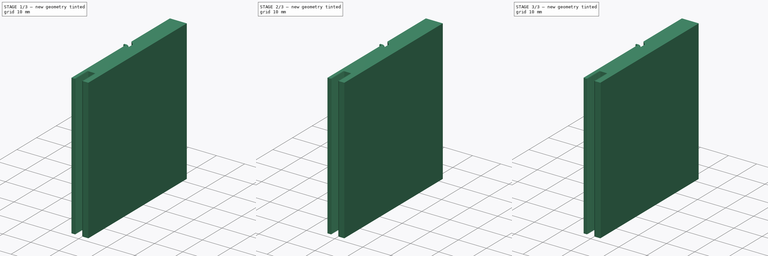
[diagram: build sequence overview — one tinted view per stage of 3, left to right]
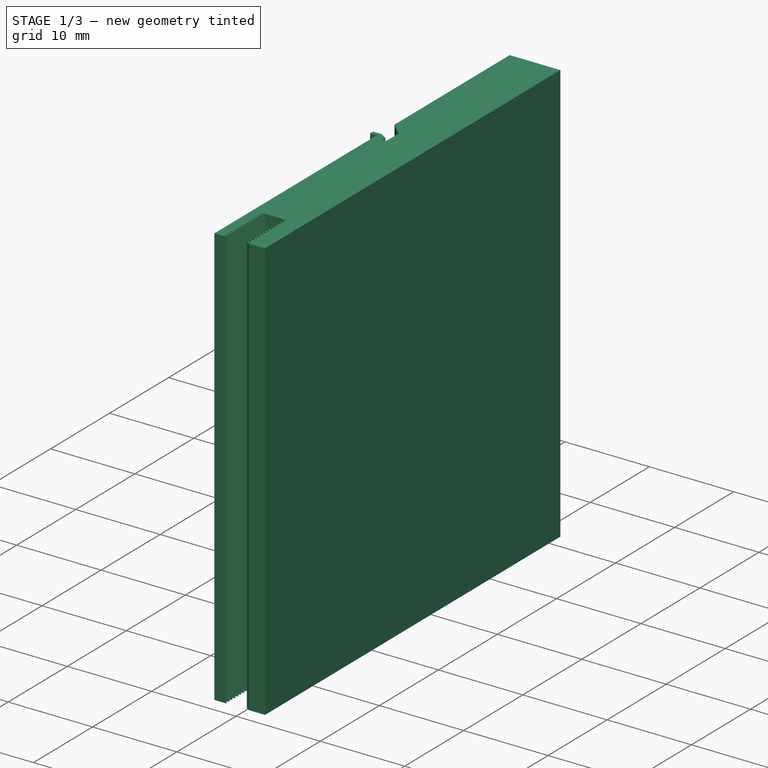
[diagram: stage 1 of 3 — iso view after this stage's code; geometry added in this stage tinted green]
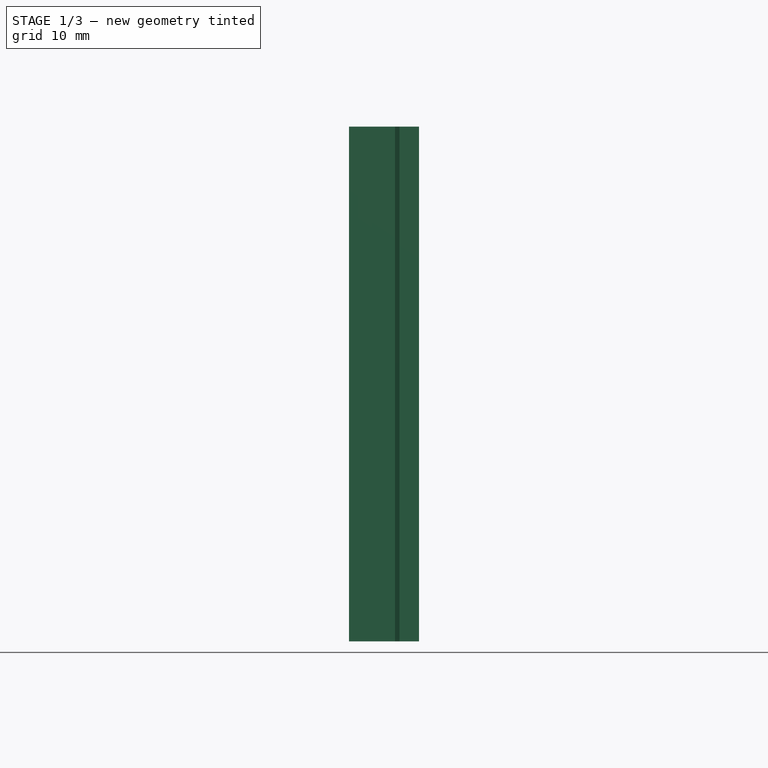
[diagram: stage 1 of 3 — front view after this stage's code; geometry added in this stage tinted green]
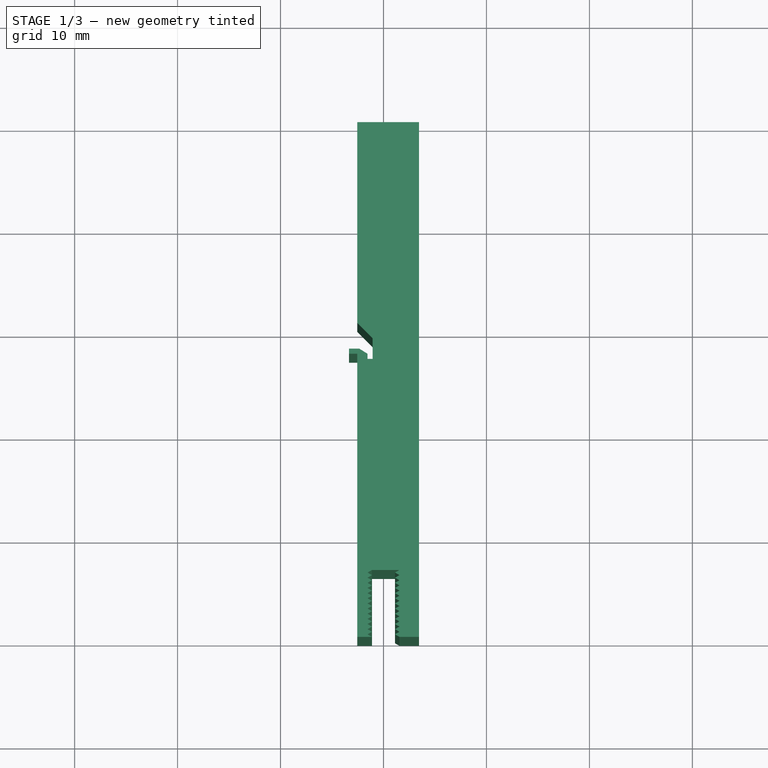
[diagram: stage 1 of 3 — top view after this stage's code; geometry added in this stage tinted green]
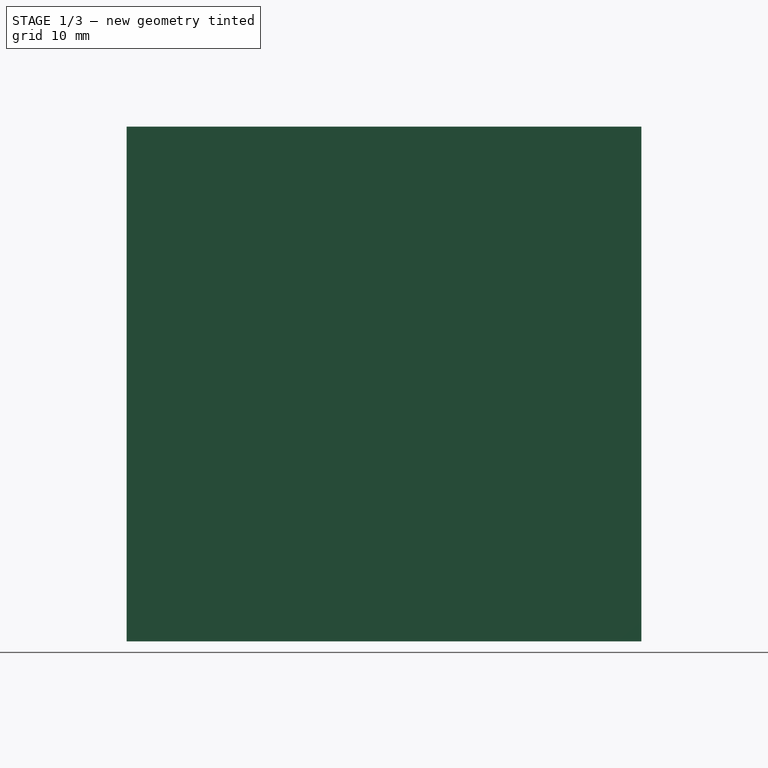
[diagram: stage 1 of 3 — right view after this stage's code; geometry added in this stage tinted green]
FCSTD DOCUMENT  (FreeCAD 0.17R13541 (Git))
Label: hsink-alutronics-PR101-50
License: All rights reserved
LicenseURL: http://fr.wikipedia.org/wiki/<copyright redacted>
objects: PartDesign::Fillet×4, Part::Feature×2, Sketcher::SketchObject×2, PartDesign::Pad×1, PartDesign::Pocket×1, PartDesign::Body×1, App::Part×1
note: 13 computed .brp shape members not serialized (recipe doc carries the construction recipe); baked Part::Feature solids carry a one-line shape summary decoded from their .brp

FEATURE [Part::Feature] Part__Feature  label="PR 101-50"
  shape: bbox 6.75 x 50 x 50 mm, 128 faces (baked)
FEATURE [Sketcher::SketchObject] Sketch001
  MapMode = 5
  sketch-geometry (13):
    g0: LineSegment StartX=-2.55 StartY=0 StartZ=0 EndX=3.45 EndY=0 EndZ=0
    g1: LineSegment StartX=3.45 StartY=0 StartZ=0 EndX=3.45 EndY=50 EndZ=0
    g2: LineSegment StartX=-2.55 StartY=0 StartZ=0 EndX=-2.55 EndY=27.5 EndZ=0
    g3: LineSegment StartX=-2.55 StartY=27.5 StartZ=0 EndX=-3.35 EndY=27.5 EndZ=0
    g4: LineSegment StartX=-3.35 StartY=27.5 StartZ=0 EndX=-3.35 EndY=28 EndZ=0
    g5: LineSegment StartX=-3.35 StartY=28 StartZ=0 EndX=-2.35 EndY=28 EndZ=0
    g6: LineSegment StartX=-2.35 StartY=28 StartZ=0 EndX=-1.55 EndY=27.5 EndZ=0
    g7: LineSegment StartX=-1.55 StartY=27.5 StartZ=0 EndX=-1.55 EndY=27 EndZ=0
    g8: LineSegment StartX=-1.55 StartY=27 StartZ=0 EndX=-1.05 EndY=27 EndZ=0
    g9: LineSegment StartX=-1.05 StartY=27 StartZ=0 EndX=-1.05 EndY=29 EndZ=0
    g10: LineSegment StartX=-1.05 StartY=29 StartZ=0 EndX=-2.55 EndY=30.5 EndZ=0
    g11: LineSegment StartX=-2.55 StartY=30.5 StartZ=0 EndX=-2.55 EndY=50 EndZ=0
    g12: LineSegment StartX=-2.55 StartY=50 StartZ=0 EndX=3.45 EndY=50 EndZ=0
  constraints (39):
    c: PointOnObject(g0,g-1)
    c: PointOnObject(g0,g-1)
    c: Coincident(g0,g1)
    c: Vertical(g1)
    c: DistanceX(g0) = 6
    c: DistanceX(g-1,g0) = 3.45
    c: DistanceY(g0,g1) = 50
    c: Coincident(g0,g2)
    c: Vertical(g2)
    c: Coincident(g2,g3)
    c: Horizontal(g3)
    c: Coincident(g3,g4)
    c: Vertical(g4)
    c: Coincident(g4,g5)
    c: Horizontal(g5)
    c: Coincident(g5,g6)
    c: Coincident(g6,g7)
    c: Coincident(g7,g8)
    c: Horizontal(g8)
    c: Coincident(g8,g9)
    c: Vertical(g9)
    c: Coincident(g9,g10)
    c: Coincident(g10,g11)
    c: Vertical(g11)
    c: Coincident(g11,g12)
    c: Coincident(g12,g1)
    c: Horizontal(g12)
    c: DistanceX(g12) = 6
    c: DistanceY(g2) = 27.5
    c: DistanceX(g3) = -0.8
    c: DistanceY(g4) = 0.5
    c: DistanceX(g8) = 0.5
    c: Vertical(g7)
    c: DistanceX(g2,g6) = 1
    c: DistanceY(g9) = 2
    c: DistanceY(g10,g5) = -2.5
    c: DistanceY(g7) = -0.5
    c: DistanceY(g5,g6) = -0.5
    c: DistanceX(g5) = 1
FEATURE [PartDesign::Pad] Pad
  Length = 50
  Length2 = 100
  Profile = -> Sketch001
  Type = 0
FEATURE [Part::Feature] ScrewTap001  label="M3x6.0-ScrewTap001"
  Placement = pos=(0,0,0) rot=(1,0,0;1.5708rad)
  shape: bbox 4.303 x 7.5 x 4.617 mm, 58 faces (baked)
FEATURE [Sketcher::SketchObject] Sketch
  MapMode = 5
  Support = -> [XY_Plane002]
  sketch-geometry (54):
    g0: LineSegment StartX=-1.11699 StartY=0 StartZ=0 EndX=1.55 EndY=0 EndZ=0
    g1: LineSegment StartX=1.55 StartY=0 StartZ=0 EndX=1.11699 EndY=0.25 EndZ=0
    g2: LineSegment StartX=1.11699 StartY=0.25 StartZ=0 EndX=1.55 EndY=0.5 EndZ=0
    g3: LineSegment StartX=1.55 StartY=0.5 StartZ=0 EndX=1.11699 EndY=0.75 EndZ=0
    g4: LineSegment StartX=1.11699 StartY=0.75 StartZ=0 EndX=1.55 EndY=1 EndZ=0
    g5: LineSegment StartX=1.55 StartY=1 StartZ=0 EndX=1.11699 EndY=1.25 EndZ=0
    g6: LineSegment StartX=1.11699 StartY=1.25 StartZ=0 EndX=1.55 EndY=1.5 EndZ=0
    g7: LineSegment StartX=1.55 StartY=1.5 StartZ=0 EndX=1.11699 EndY=1.75 EndZ=0
    g8: LineSegment StartX=1.11699 StartY=1.75 StartZ=0 EndX=1.55 EndY=2 EndZ=0
    g9: LineSegment StartX=1.55 StartY=2 StartZ=0 EndX=1.11699 EndY=2.25 EndZ=0
    g10: LineSegment StartX=1.11699 StartY=2.25 StartZ=0 EndX=1.55 EndY=2.5 EndZ=0
    g11: LineSegment StartX=1.55 StartY=2.5 StartZ=0 EndX=1.11699 EndY=2.75 EndZ=0
    g12: LineSegment StartX=1.11699 StartY=2.75 StartZ=0 EndX=1.55 EndY=3 EndZ=0
    g13: LineSegment StartX=1.55 StartY=3 StartZ=0 EndX=1.11699 EndY=3.25 EndZ=0
    g14: LineSegment StartX=1.11699 StartY=3.25 StartZ=0 EndX=1.55 EndY=3.5 EndZ=0
    g15: LineSegment StartX=1.55 StartY=3.5 StartZ=0 EndX=1.11699 EndY=3.75 EndZ=0
    g16: LineSegment StartX=1.11699 StartY=3.75 StartZ=0 EndX=1.55 EndY=4 EndZ=0
    g17: LineSegment StartX=1.55 StartY=4 StartZ=0 EndX=1.11699 EndY=4.25 EndZ=0
    g18: LineSegment StartX=1.11699 StartY=4.25 StartZ=0 EndX=1.55 EndY=4.5 EndZ=0
    g19: LineSegment StartX=1.55 StartY=4.5 StartZ=0 EndX=1.11699 EndY=4.75 EndZ=0
    g20: LineSegment StartX=1.11699 StartY=4.75 StartZ=0 EndX=1.55 EndY=5 EndZ=0
    g21: LineSegment StartX=1.55 StartY=5 StartZ=0 EndX=1.11699 EndY=5.25 EndZ=0
    g22: LineSegment StartX=1.11699 StartY=5.25 StartZ=0 EndX=1.55 EndY=5.5 EndZ=0
    g23: LineSegment StartX=1.55 StartY=5.5 StartZ=0 EndX=1.11699 EndY=5.75 EndZ=0
    g24: LineSegment StartX=1.11699 StartY=5.75 StartZ=0 EndX=1.55 EndY=6 EndZ=0
    g25: LineSegment StartX=1.55 StartY=6 StartZ=0 EndX=1.11699 EndY=6.25 EndZ=0
    g26: LineSegment StartX=1.11699 StartY=6.25 StartZ=0 EndX=1.55 EndY=6.5 EndZ=0
    g27: LineSegment StartX=1.55 StartY=6.5 StartZ=0 EndX=-1.11699 EndY=6.5 EndZ=0
    g28: LineSegment StartX=-1.11699 StartY=6.5 StartZ=0 EndX=-1.55 EndY=6.25 EndZ=0
    g29: LineSegment StartX=-1.55 StartY=6.25 StartZ=0 EndX=-1.11699 EndY=6 EndZ=0
    g30: LineSegment StartX=-1.11699 StartY=6 StartZ=0 EndX=-1.55 EndY=5.75 EndZ=0
    g31: LineSegment StartX=-1.55 StartY=5.75 StartZ=0 EndX=-1.11699 EndY=5.5 EndZ=0
    g32: LineSegment StartX=-1.11699 StartY=5.5 StartZ=0 EndX=-1.55 EndY=5.25 EndZ=0
    g33: LineSegment StartX=-1.55 StartY=5.25 StartZ=0 EndX=-1.11699 EndY=5 EndZ=0
    g34: LineSegment StartX=-1.11699 StartY=5 StartZ=0 EndX=-1.55 EndY=4.75 EndZ=0
    g35: LineSegment StartX=-1.55 StartY=4.75 StartZ=0 EndX=-1.11699 EndY=4.5 EndZ=0
    g36: LineSegment StartX=-1.11699 StartY=4.5 StartZ=0 EndX=-1.55 EndY=4.25 EndZ=0
    g37: LineSegment StartX=-1.55 StartY=4.25 StartZ=0 EndX=-1.11699 EndY=4 EndZ=0
    g38: LineSegment StartX=-1.11699 StartY=4 StartZ=0 EndX=-1.55 EndY=3.75 EndZ=0
    g39: LineSegment StartX=-1.55 StartY=3.75 StartZ=0 EndX=-1.11699 EndY=3.5 EndZ=0
    g40: LineSegment StartX=-1.11699 StartY=3.5 StartZ=0 EndX=-1.55 EndY=3.25 EndZ=0
    g41: LineSegment StartX=-1.55 StartY=3.25 StartZ=0 EndX=-1.11699 EndY=3 EndZ=0
    g42: LineSegment StartX=-1.11699 StartY=3 StartZ=0 EndX=-1.55 EndY=2.75 EndZ=0
    g43: LineSegment StartX=-1.55 StartY=2.75 StartZ=0 EndX=-1.11699 EndY=2.5 EndZ=0
    g44: LineSegment StartX=-1.11699 StartY=2.5 StartZ=0 EndX=-1.55 EndY=2.25 EndZ=0
    g45: LineSegment StartX=-1.55 StartY=2.25 StartZ=0 EndX=-1.11699 EndY=2 EndZ=0
    g46: LineSegment StartX=-1.11699 StartY=2 StartZ=0 EndX=-1.55 EndY=1.75 EndZ=0
    g47: LineSegment StartX=-1.55 StartY=1.75 StartZ=0 EndX=-1.11699 EndY=1.5 EndZ=0
    g48: LineSegment StartX=-1.11699 StartY=1.5 StartZ=0 EndX=-1.55 EndY=1.25 EndZ=0
    g49: LineSegment StartX=-1.55 StartY=1.25 StartZ=0 EndX=-1.11699 EndY=1 EndZ=0
    g50: LineSegment StartX=-1.11699 StartY=1 StartZ=0 EndX=-1.55 EndY=0.75 EndZ=0
    g51: LineSegment StartX=-1.55 StartY=0.75 StartZ=0 EndX=-1.11699 EndY=0.5 EndZ=0
    g52: LineSegment StartX=-1.11699 StartY=0.5 StartZ=0 EndX=-1.55 EndY=0.25 EndZ=0
    g53: LineSegment StartX=-1.55 StartY=0.25 StartZ=0 EndX=-1.11699 EndY=0 EndZ=0
  constraints (162):
    c: PointOnObject(g0,g-1)
    c: PointOnObject(g0,g-1)
    c: Coincident(g0,g1)
    c: Coincident(g1,g2)
    c: Coincident(g2,g3)
    c: Coincident(g3,g4)
    c: Coincident(g4,g5)
    c: Coincident(g5,g6)
    c: Coincident(g6,g7)
    c: Coincident(g7,g8)
    c: Coincident(g8,g9)
    c: Coincident(g9,g10)
    c: Coincident(g10,g11)
    c: Coincident(g11,g12)
    c: Coincident(g12,g13)
    c: Coincident(g13,g14)
    c: Coincident(g14,g15)
    c: Coincident(g15,g16)
    c: Coincident(g16,g17)
    c: Coincident(g17,g18)
    c: Coincident(g18,g19)
    c: Coincident(g19,g20)
    c: Coincident(g20,g21)
    c: Coincident(g21,g22)
    c: Coincident(g22,g23)
    c: Coincident(g23,g24)
    c: Coincident(g24,g25)
    c: Coincident(g25,g26)
    c: Coincident(g26,g27)
    c: Horizontal(g27)
    c: Coincident(g27,g28)
    c: Coincident(g28,g29)
    c: Coincident(g29,g30)
    c: Coincident(g30,g31)
    c: Coincident(g31,g32)
    c: Coincident(g32,g33)
    c: Coincident(g33,g34)
    c: Coincident(g34,g35)
    c: Coincident(g35,g36)
    c: Coincident(g36,g37)
    c: Coincident(g37,g38)
    c: Coincident(g38,g39)
    c: Coincident(g39,g40)
    c: Coincident(g40,g41)
    c: Coincident(g41,g42)
    c: Coincident(g42,g43)
    c: Coincident(g43,g44)
    c: Coincident(g44,g45)
    c: Coincident(g45,g46)
    c: Coincident(g46,g47)
    c: Coincident(g47,g48)
    c: Coincident(g48,g49)
    c: Coincident(g49,g50)
    c: Coincident(g50,g51)
    c: Coincident(g51,g52)
    c: Coincident(g52,g53)
    c: Coincident(g53,g0)
    c: Vertical(g2,g4)
    c: Vertical(g4,g6)
    c: Vertical(g6,g8)
    c: Vertical(g8,g10)
    c: Vertical(g10,g12)
    c: Vertical(g12,g14)
    c: Vertical(g14,g16)
    c: Vertical(g16,g18)
    c: Vertical(g18,g20)
    c: Vertical(g20,g22)
    c: Vertical(g22,g24)
    c: Vertical(g24,g26)
    c: DistanceX(g52,g2) = 3.1
    c: Vertical(g52,g50)
    c: Vertical(g50,g48)
    c: Vertical(g48,g46)
    c: Vertical(g46,g44)
    c: Vertical(g44,g42)
    c: Vertical(g42,g40)
    c: Vertical(g40,g38)
    c: Vertical(g38,g36)
    c: Vertical(g36,g34)
    c: Vertical(g34,g32)
    c: Vertical(g32,g30)
    c: Vertical(g30,g28)
    c: Angle(g51,g52) = 1.0472
    c: Angle(g49,g50) = 1.0472
    c: Angle(g47,g48) = 1.0472
    c: Angle(g45,g46) = 1.0472
    c: Angle(g43,g44) = 1.0472
    c: Vertical(g51,g49)
    c: Vertical(g49,g47)
    c: Vertical(g47,g45)
    c: Vertical(g45,g43)
    c: Vertical(g43,g41)
    c: Vertical(g41,g39)
    c: Vertical(g39,g37)
    c: Vertical(g37,g35)
    c: Vertical(g35,g33)
    c: Vertical(g33,g31)
    c: Vertical(g31,g29)
    c: Vertical(g29,g27)
    c: Angle(g41,g42) = 1.0472
    c: Angle(g39,g40) = 1.0472
    c: Angle(g37,g38) = 1.0472
    c: Angle(g35,g36) = 1.0472
    c: Angle(g33,g34) = 1.0472
    c: Angle(g31,g32) = 1.0472
    c: Angle(g29,g30) = 1.0472
    c: DistanceY(g-1,g27) = 6.5
    c: Vertical(g1,g3)
    c: Vertical(g3,g5)
    c: Vertical(g5,g7)
    c: Vertical(g7,g9)
    c: Vertical(g9,g11)
    c: Vertical(g11,g13)
    c: Vertical(g13,g15)
    c: Vertical(g15,g17)
    c: Vertical(g17,g19)
    c: Vertical(g19,g21)
    c: Vertical(g21,g23)
    c: Vertical(g23,g25)
    c: Angle(g1,g2) = 1.0472
    c: Angle(g3,g4) = 1.0472
    c: Angle(g5,g6) = 1.0472
    c: Angle(g7,g8) = 1.0472
    c: Angle(g9,g10) = 1.0472
    c: Angle(g11,g12) = 1.0472
    c: Angle(g13,g14) = 1.0472
    c: Angle(g15,g16) = 1.0472
    c: Angle(g17,g18) = 1.0472
    c: Angle(g19,g20) = 1.0472
    c: Angle(g21,g22) = 1.0472
    c: Angle(g23,g24) = 1.0472
    c: Angle(g25,g26) = 1.0472
    c: Angle(g3,g2) = 1.0472
    c: Angle(g5,g4) = 1.0472
    c: Angle(g7,g6) = 1.0472
    c: Angle(g9,g8) = 1.0472
    c: Angle(g11,g10) = 1.0472
    c: Angle(g13,g12) = 1.0472
    c: Angle(g15,g14) = 1.0472
    c: Angle(g17,g16) = 1.0472
    c: Angle(g19,g18) = 1.0472
    c: Angle(g21,g20) = 1.0472
    c: Angle(g23,g22) = 1.0472
    c: Angle(g25,g24) = 1.0472
    c: Angle(g29,g28) = 1.0472
    c: Angle(g53,g52) = 1.0472
    c: Angle(g51,g50) = 1.0472
    c: Angle(g49,g48) = 1.0472
    c: Angle(g47,g46) = 1.0472
    c: Angle(g45,g44) = 1.0472
    c: Angle(g43,g42) = 1.0472
    c: Angle(g41,g40) = 1.0472
    c: Angle(g39,g38) = 1.0472
    c: Angle(g37,g36) = 1.0472
    c: Angle(g35,g34) = 1.0472
    c: Angle(g33,g32) = 1.0472
    c: Angle(g31,g30) = 1.0472
    c: Angle(g1,g0) = 0.523599
    c: Angle(g0,g53) = 2.61799
    c: DistanceX(g-1,g2) = 1.55
    c: DistanceY(g52,g50) = 0.5
    c: DistanceY(g2,g4) = 0.5
FEATURE [PartDesign::Pocket] Pocket
  BaseFeature = -> Pad
  Length = 5
  Length2 = 100
  Profile = -> Sketch
  Reversed = true
  Type = 1
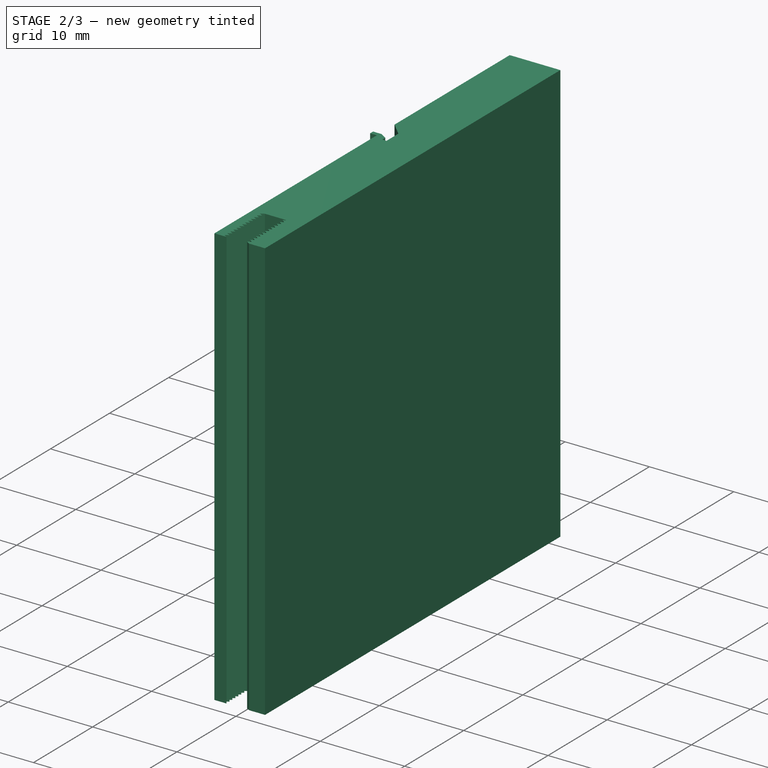
[diagram: stage 2 of 3 — iso view after this stage's code; geometry added in this stage tinted green]
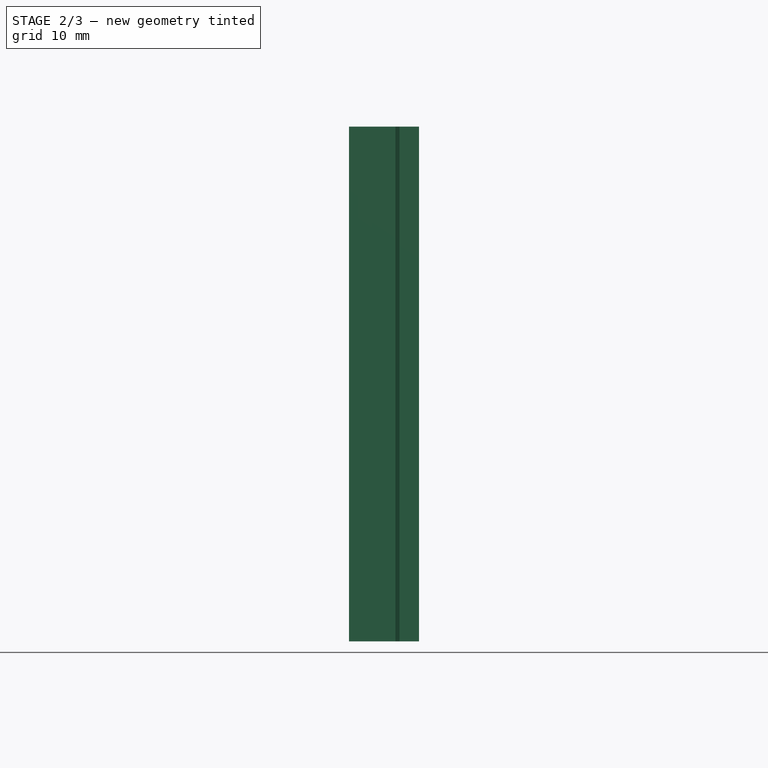
[diagram: stage 2 of 3 — front view after this stage's code; geometry added in this stage tinted green]
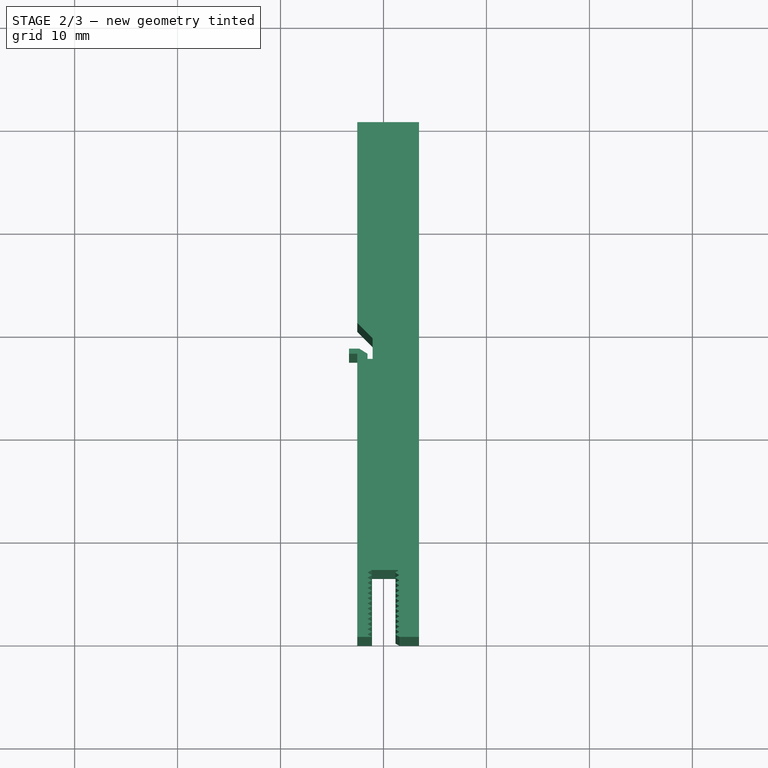
[diagram: stage 2 of 3 — top view after this stage's code; geometry added in this stage tinted green]
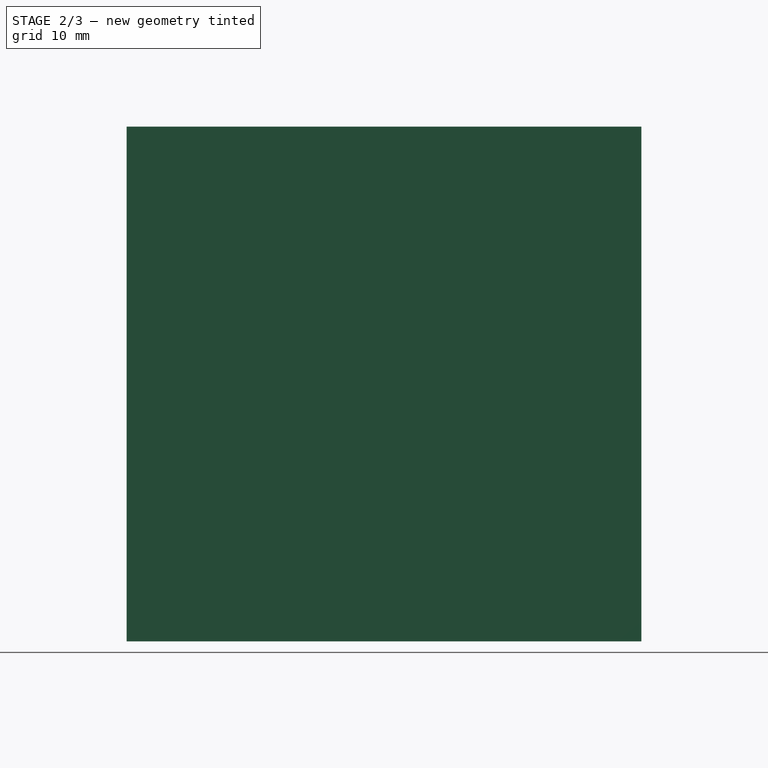
[diagram: stage 2 of 3 — right view after this stage's code; geometry added in this stage tinted green]
FEATURE [PartDesign::Fillet] Fillet
  Base = -> Pocket [Edge151,Edge153,Edge155,Edge157,Edge159,Edge161,Edge163,Edge165,Edge167,Edge169,Edge171,Edge173,Edge175]
  BaseFeature = -> Pocket
  Radius = 0.05
FEATURE [PartDesign::Fillet] Fillet001
  Base = -> Fillet [Edge88,Edge100,Edge112,Edge124,Edge136,Edge148,Edge160,Edge172,Edge184,Edge196,Edge208,Edge220,Edge232]
  BaseFeature = -> Fillet
  Radius = 0.05
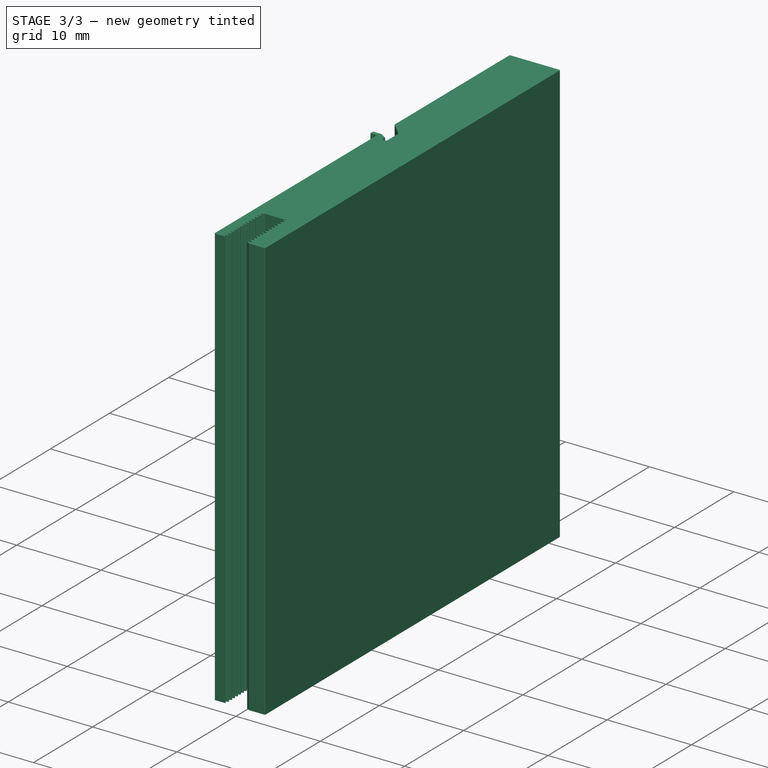
[diagram: stage 3 of 3 — iso view after this stage's code; geometry added in this stage tinted green]
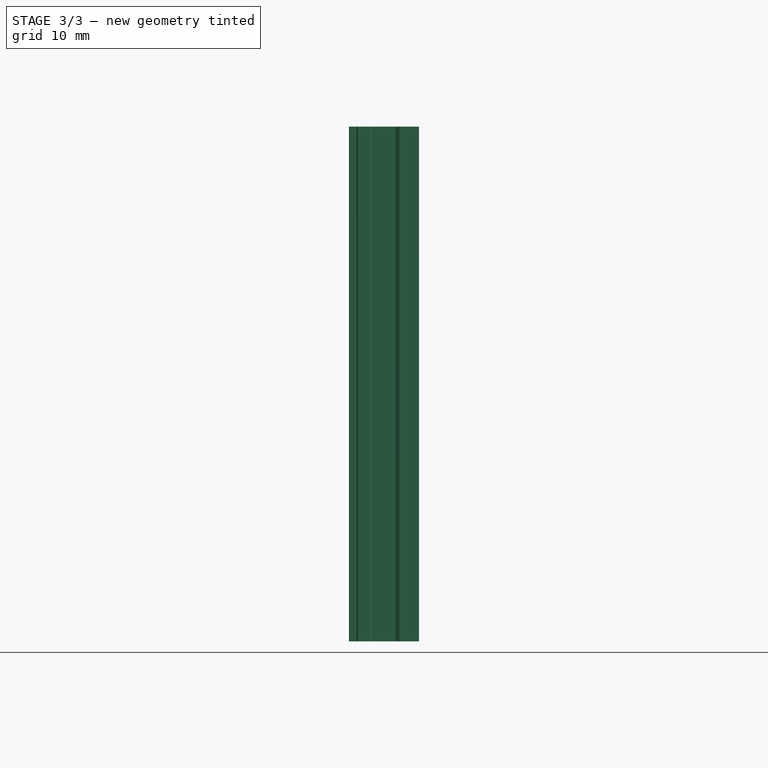
[diagram: stage 3 of 3 — front view after this stage's code; geometry added in this stage tinted green]
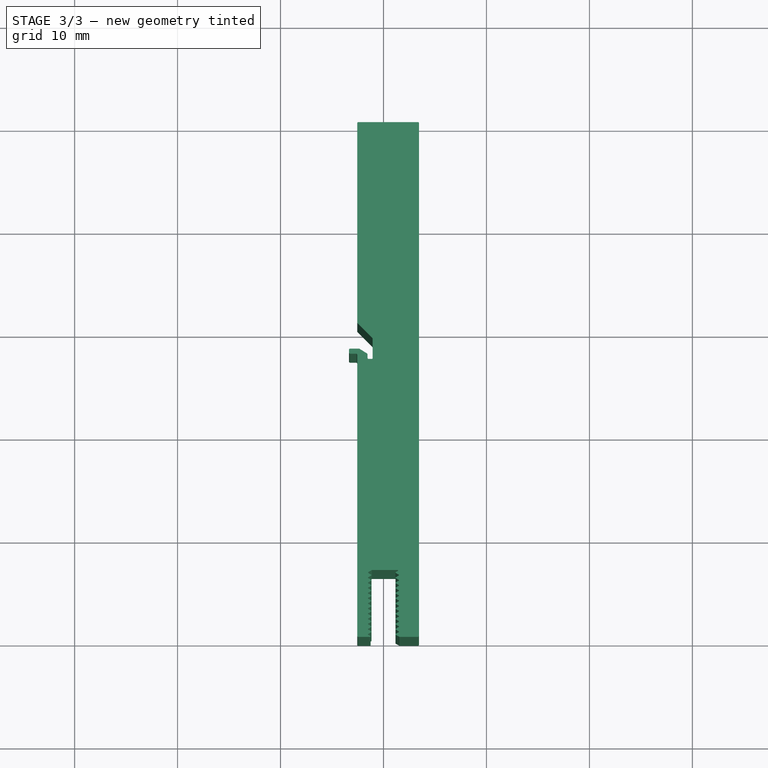
[diagram: stage 3 of 3 — top view after this stage's code; geometry added in this stage tinted green]
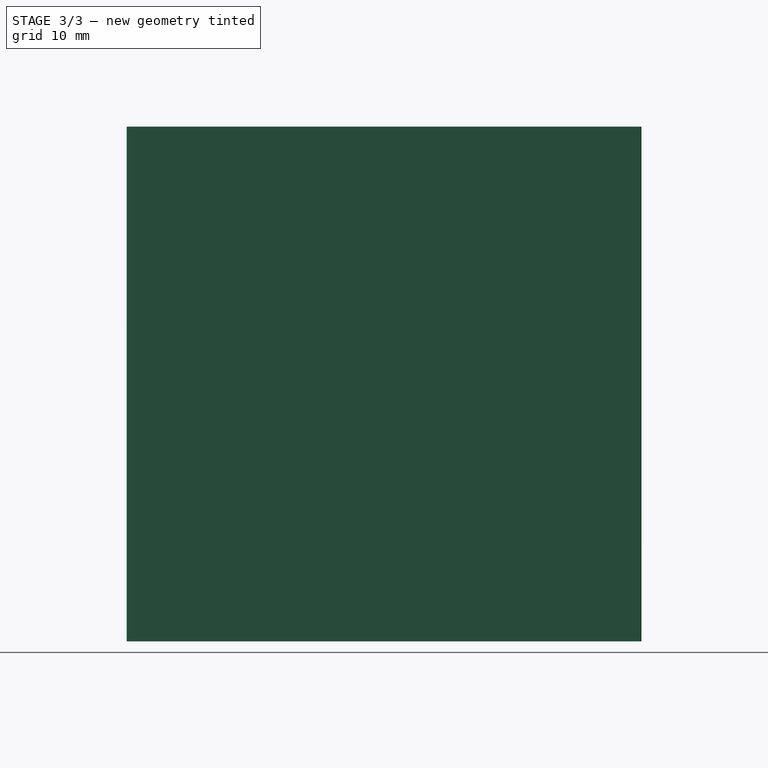
[diagram: stage 3 of 3 — right view after this stage's code; geometry added in this stage tinted green]
FEATURE [PartDesign::Fillet] Fillet002
  Base = -> Fillet001 [Edge159,Edge164,Edge168,Edge172,Edge176,Edge180,Edge184,Edge188,Edge192,Edge196,Edge200,Edge204,Edge208,Edge212,Edge216,Edge220,Edge224,Edge228,Edge232,Edge236,Edge240,Edge244,Edge248,Edge252,Edge256,Edge260]
  BaseFeature = -> Fillet001
  Radius = 0.05
FEATURE [PartDesign::Fillet] Fillet003
  Base = -> Fillet002 [Edge129,Edge121,Edge133,Edge137,Edge141,Edge149,Edge157,Edge145,Edge153,Edge125,Edge161,Edge165,Edge169]
  BaseFeature = -> Fillet002
  Radius = 0.1
FEATURE [PartDesign::Body] Body
  Group = -> [Sketch001,Pad,Sketch,Pocket,Fillet,Fillet001,Fillet002,Fillet003]
  Origin = -> Origin002
  Tip = -> Fillet003
FEATURE [App::Part] Part
  Group = -> [Body,ScrewTap001]
  License = CC BY 3.0
  LicenseURL = http://creativecommons.org/licenses/by/3.0/
  Origin = -> Origin
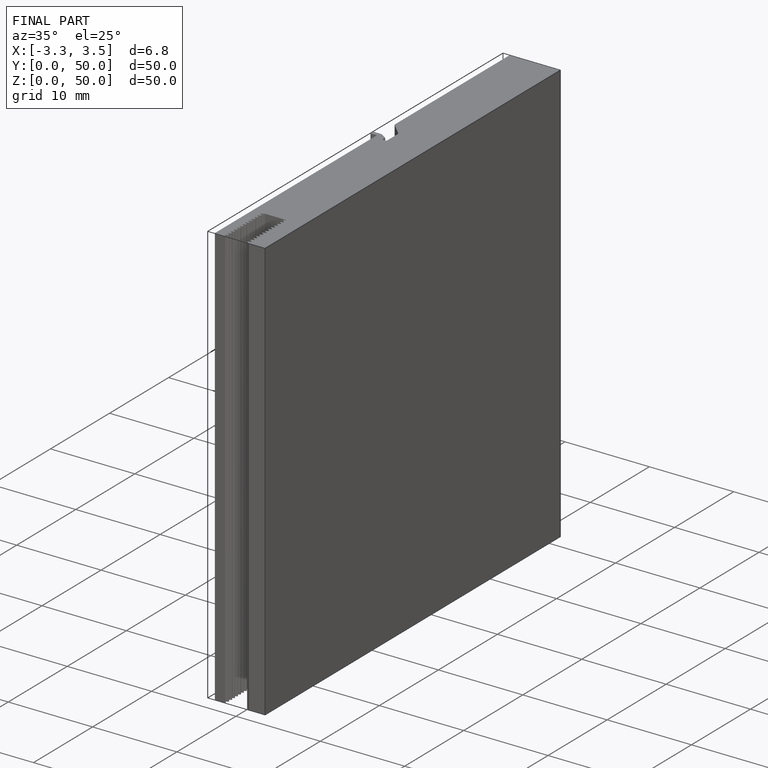
[diagram: finished part — iso view with bounding-box wireframe]
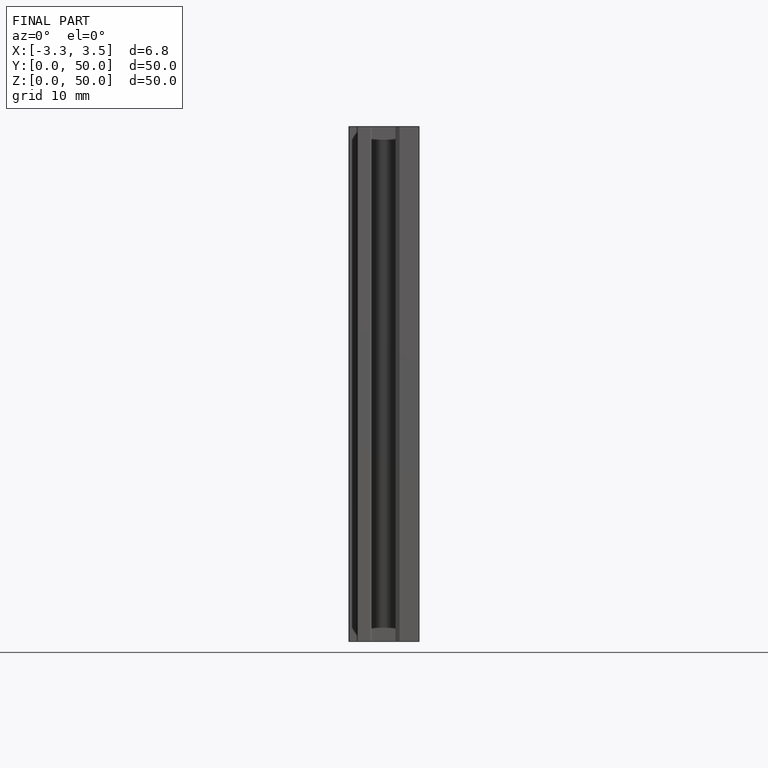
[diagram: finished part — front view with bounding-box wireframe]
